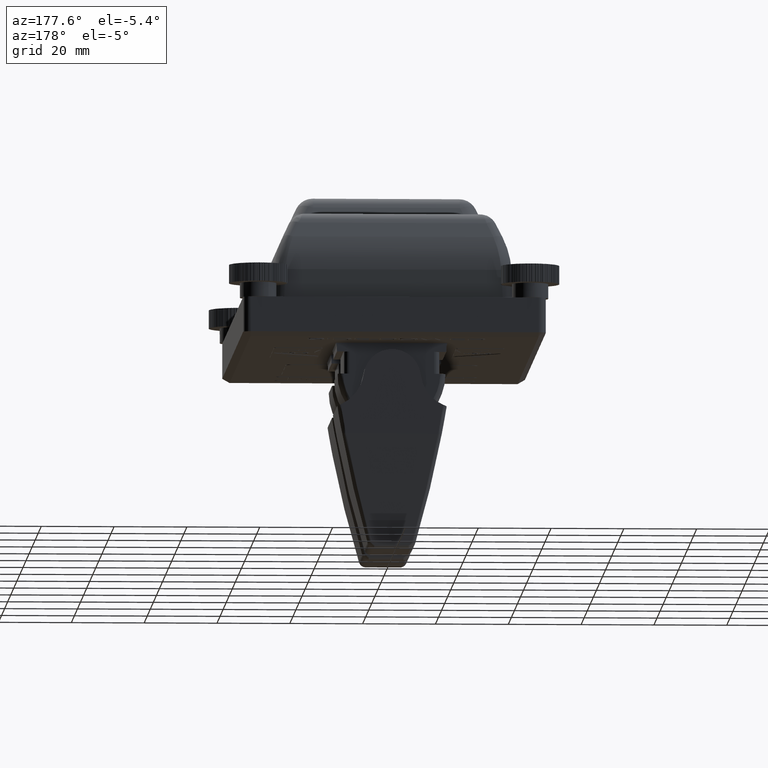
[diagram: clean part render]
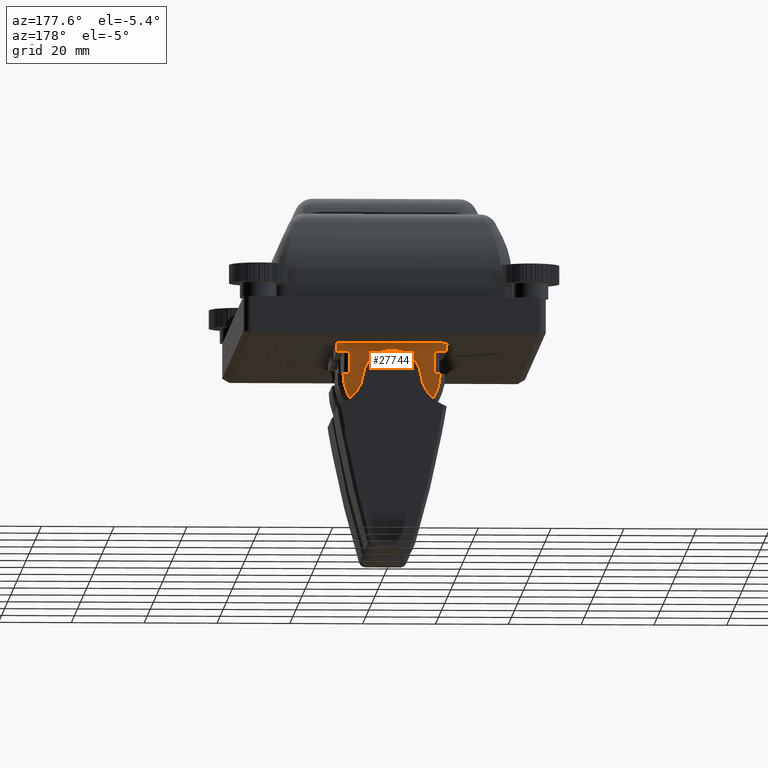
[diagram: same view with one face highlighted and labeled with its STEP entity id]
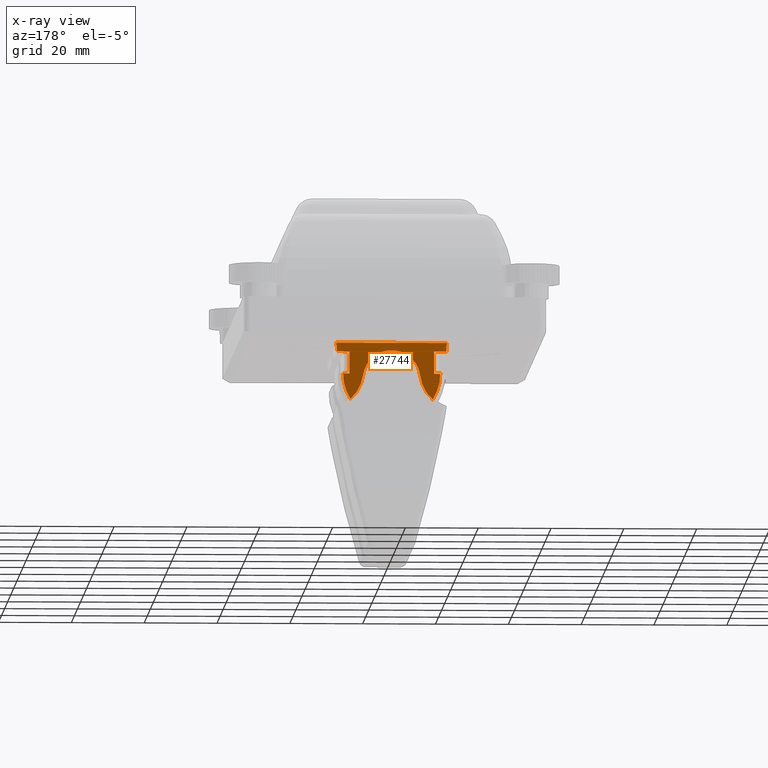
[diagram: x-ray of the same camera — body ghosted, the highlighted face saturated]
A machine part, auxiliary view. The second image highlights one B-rep face of the part: STEP entity #27744.
The next image is the same camera in x-ray: the body ghosted, the highlighted face saturated — about 0% of this face is hidden behind the body in this view.
In plain terms, the highlighted planar face has unit normal (0, 1, 0).
Its self-contained STEP definition (entity closure, byte-faithful):
#501=PLANE('',#30864);
#1827=FACE_OUTER_BOUND('',#3311,.T.);
#3311=EDGE_LOOP('',(#22582,#22583,#22584,#22585,#22586,#22587,#22588,#22589,
#22590,#22591,#22592,#22593,#22594,#22595,#22596,#22597,#22598,#22599));
#5414=CIRCLE('',#30842,10.7066157575281);
#5417=CIRCLE('',#30846,10.2461109155899);
#5422=CIRCLE('',#30853,15.9987806790244);
#5425=CIRCLE('',#30857,15.9987806790244);
#5428=CIRCLE('',#30865,11.12);
#5429=CIRCLE('',#30866,11.12);
#6571=LINE('',#48658,#8455);
#6572=LINE('',#48660,#8456);
#6573=LINE('',#48662,#8457);
#6574=LINE('',#48664,#8458);
#6575=LINE('',#48668,#8459);
#6576=LINE('',#48672,#8460);
#6577=LINE('',#48674,#8461);
#6578=LINE('',#48676,#8462);
#6579=LINE('',#48677,#8463);
#8455=VECTOR('',#37758,1.69999657854355);
#8456=VECTOR('',#37759,6.06700000082101);
#8457=VECTOR('',#37760,3.35886697851058);
#8458=VECTOR('',#37761,1.44535948055338);
#8459=VECTOR('',#37764,30.5);
#8460=VECTOR('',#37767,1.4453594812439);
#8461=VECTOR('',#37768,3.35886697849237);
#8462=VECTOR('',#37769,6.0670000013786);
#8463=VECTOR('',#37770,1.69999657833169);
#9445=B_SPLINE_CURVE_WITH_KNOTS('',3,(#48392,#48393,#48394,#48395,#48396,
#48397,#48398,#48399,#48400,#48401,#48402,#48403,#48404,#48405,#48406,#48407,
#48408,#48409,#48410,#48411,#48412,#48413,#48414,#48415,#48416),
 .UNSPECIFIED.,.F.,.F.,(4,3,3,3,3,3,3,3,4),(0.,0.240639957511937,0.533265643599107,
0.84755957119365,1.15405962661563,1.4605757091883,1.77487749943685,2.06718528705017,
2.3076292154807),.UNSPECIFIED.);
#9454=B_SPLINE_CURVE_WITH_KNOTS('',3,(#48611,#48612,#48613,#48614,#48615,
#48616,#48617,#48618),.UNSPECIFIED.,.F.,.F.,(4,2,2,4),(0.0155860871185358,
0.224154063168799,0.485486840933294,0.747024235592146),.UNSPECIFIED.);
#9457=B_SPLINE_CURVE_WITH_KNOTS('',3,(#48649,#48650,#48651,#48652,#48653,
#48654,#48655,#48656),.UNSPECIFIED.,.F.,.F.,(4,2,2,4),(-7.90478793533111E-14,
0.261138892777843,0.522547252253051,0.730794291010403),.UNSPECIFIED.);
#11672=VERTEX_POINT('',#48257);
#11673=VERTEX_POINT('',#48259);
#11679=VERTEX_POINT('',#48391);
#11683=VERTEX_POINT('',#48436);
#11698=VERTEX_POINT('',#48495);
#11701=VERTEX_POINT('',#48516);
#11704=VERTEX_POINT('',#48610);
#11706=VERTEX_POINT('',#48648);
#11707=VERTEX_POINT('',#48657);
#11708=VERTEX_POINT('',#48659);
#11709=VERTEX_POINT('',#48661);
#11710=VERTEX_POINT('',#48663);
#11711=VERTEX_POINT('',#48665);
#11712=VERTEX_POINT('',#48667);
#11713=VERTEX_POINT('',#48669);
#11714=VERTEX_POINT('',#48671);
#11715=VERTEX_POINT('',#48673);
#11716=VERTEX_POINT('',#48675);
#15417=EDGE_CURVE('',#11673,#11672,#5414,.T.);
#15425=EDGE_CURVE('',#11672,#11679,#9445,.T.);
#15431=EDGE_CURVE('',#11679,#11683,#5417,.T.);
#15447=EDGE_CURVE('',#11673,#11698,#5422,.T.);
#15452=EDGE_CURVE('',#11701,#11683,#5425,.T.);
#15459=EDGE_CURVE('',#11698,#11704,#9454,.T.);
#15462=EDGE_CURVE('',#11706,#11701,#9457,.T.);
#15463=EDGE_CURVE('',#11706,#11707,#6571,.T.);
#15464=EDGE_CURVE('',#11708,#11707,#6572,.T.);
#15465=EDGE_CURVE('',#11709,#11708,#6573,.T.);
#15466=EDGE_CURVE('',#11709,#11710,#6574,.T.);
#15467=EDGE_CURVE('',#11710,#11711,#5428,.T.);
#15468=EDGE_CURVE('',#11712,#11711,#6575,.T.);
#15469=EDGE_CURVE('',#11712,#11713,#5429,.T.);
#15470=EDGE_CURVE('',#11713,#11714,#6576,.T.);
#15471=EDGE_CURVE('',#11714,#11715,#6577,.T.);
#15472=EDGE_CURVE('',#11716,#11715,#6578,.T.);
#15473=EDGE_CURVE('',#11704,#11716,#6579,.T.);
#22582=ORIENTED_EDGE('',*,*,#15431,.T.);
#22583=ORIENTED_EDGE('',*,*,#15452,.F.);
#22584=ORIENTED_EDGE('',*,*,#15462,.F.);
#22585=ORIENTED_EDGE('',*,*,#15463,.T.);
#22586=ORIENTED_EDGE('',*,*,#15464,.F.);
#22587=ORIENTED_EDGE('',*,*,#15465,.F.);
#22588=ORIENTED_EDGE('',*,*,#15466,.T.);
#22589=ORIENTED_EDGE('',*,*,#15467,.T.);
#22590=ORIENTED_EDGE('',*,*,#15468,.F.);
#22591=ORIENTED_EDGE('',*,*,#15469,.T.);
#22592=ORIENTED_EDGE('',*,*,#15470,.T.);
#22593=ORIENTED_EDGE('',*,*,#15471,.T.);
#22594=ORIENTED_EDGE('',*,*,#15472,.F.);
#22595=ORIENTED_EDGE('',*,*,#15473,.F.);
#22596=ORIENTED_EDGE('',*,*,#15459,.F.);
#22597=ORIENTED_EDGE('',*,*,#15447,.F.);
#22598=ORIENTED_EDGE('',*,*,#15417,.T.);
#22599=ORIENTED_EDGE('',*,*,#15425,.T.);
#27744=ADVANCED_FACE('',(#1827),#501,.T.);
#30842=AXIS2_PLACEMENT_3D('',#48260,#37696,#37697);
#30846=AXIS2_PLACEMENT_3D('',#48449,#37709,#37710);
#30853=AXIS2_PLACEMENT_3D('',#48496,#37732,#37733);
#30857=AXIS2_PLACEMENT_3D('',#48531,#37740,#37741);
#30864=AXIS2_PLACEMENT_3D('',#48647,#37756,#37757);
#30865=AXIS2_PLACEMENT_3D('',#48666,#37762,#37763);
#30866=AXIS2_PLACEMENT_3D('',#48670,#37765,#37766);
#37696=DIRECTION('center_axis',(2.21594583206434E-17,1.,5.74183542660754E-16));
#37697=DIRECTION('ref_axis',(-0.319013248165814,5.25475811951348E-16,-0.947750255866331));
#37709=DIRECTION('center_axis',(2.21594583206434E-17,1.,5.74183542660754E-16));
#37710=DIRECTION('ref_axis',(0.993305521487619,2.63912406007084E-16,-0.115516842850767));
#37732=DIRECTION('center_axis',(-2.21594583206434E-17,-1.,-5.74183542660754E-16));
#37733=DIRECTION('ref_axis',(2.34477680435715E-13,5.74183542660749E-16,
-1.));
#37740=DIRECTION('center_axis',(-2.21594583206434E-17,-1.,-5.74183542660754E-16));
#37741=DIRECTION('ref_axis',(2.34477680435715E-13,5.74183542660749E-16,
-1.));
#37756=DIRECTION('center_axis',(2.21594583206434E-17,1.,5.74183542660754E-16));
#37757=DIRECTION('ref_axis',(0.,-7.105427357601E-16,1.));
#37758=DIRECTION('',(1.,2.1065881226015E-16,5.27683534907858E-13));
#37759=DIRECTION('',(-1.28093420064296E-31,5.74183542660754E-16,-1.));
#37760=DIRECTION('',(1.,-2.21594586352169E-17,5.47862300729315E-10));
#37761=DIRECTION('',(-0.0261769483069533,-5.56133978878287E-16,0.999657324975581));
#37762=DIRECTION('center_axis',(-2.1065881226044E-16,1.,5.50808322294633E-16));
#37763=DIRECTION('ref_axis',(-0.967951013435614,-6.55779175984534E-17,-0.25113907618881));
#37764=DIRECTION('',(-1.,2.21594583206434E-17,1.17650160675952E-32));
#37765=DIRECTION('center_axis',(-2.1065881226044E-16,1.,5.50808322294633E-16));
#37766=DIRECTION('ref_axis',(0.986252453582215,2.98781404636306E-16,-0.165245568179787));
#37767=DIRECTION('',(-0.0261769483068587,5.45105169200416E-16,-0.999657324975584));
#37768=DIRECTION('',(-1.,-2.10658812766953E-16,9.19581295783228E-10));
#37769=DIRECTION('',(1.64694366600073E-14,-5.74183542660754E-16,1.));
#37770=DIRECTION('',(-1.,2.21594583203464E-17,5.17234355998791E-13));
#48257=CARTESIAN_POINT('',(7.84711282165172,50.0199999114181,-57.8080019411414));
#48259=CARTESIAN_POINT('',(11.3227272479988,50.0199999114181,-64.2707160658981));
#48260=CARTESIAN_POINT('Origin',(18.4434519574775,50.0199999114181,-56.2752860842668));
#48391=CARTESIAN_POINT('',(-7.84711441781341,50.0199999114181,-57.808001941479));
#48392=CARTESIAN_POINT('Ctrl Pts',(7.84711282165172,50.0199999114181,-57.8080019411414));
#48393=CARTESIAN_POINT('Ctrl Pts',(7.75434337891018,50.0199999114181,-57.0102966248266));
#48394=CARTESIAN_POINT('Ctrl Pts',(7.54068967711459,50.0199999114181,-56.2327853073361));
#48395=CARTESIAN_POINT('Ctrl Pts',(7.21441608324814,50.0199999114181,-55.5015495757342));
#48396=CARTESIAN_POINT('Ctrl Pts',(6.81765722721918,50.0199999114181,-54.6123441425889));
#48397=CARTESIAN_POINT('Ctrl Pts',(6.26023347306767,50.0199999114181,-53.8048369999364));
#48398=CARTESIAN_POINT('Ctrl Pts',(5.57094090268735,50.0199999114181,-53.119280815539));
#48399=CARTESIAN_POINT('Ctrl Pts',(4.83060784408484,50.0199999114181,-52.3829608134843));
#48400=CARTESIAN_POINT('Ctrl Pts',(3.95042108575192,50.0199999114181,-51.7994969449958));
#48401=CARTESIAN_POINT('Ctrl Pts',(2.98030476935958,50.0199999114181,-51.4043169127304));
#48402=CARTESIAN_POINT('Ctrl Pts',(2.03424543243341,50.0199999114181,-51.0189365691837));
#48403=CARTESIAN_POINT('Ctrl Pts',(1.02174311491256,50.0199999114181,-50.8202693373237));
#48404=CARTESIAN_POINT('Ctrl Pts',(-0.00243855537176263,50.0199999114181,
-50.8205853761177));
#48405=CARTESIAN_POINT('Ctrl Pts',(-1.02667378099376,50.0199999114181,-50.8209014314377));
#48406=CARTESIAN_POINT('Ctrl Pts',(-2.0391023041176,50.0199999114181,-51.0202144896613));
#48407=CARTESIAN_POINT('Ctrl Pts',(-2.98495923184294,50.0199999114181,-51.4062139984309));
#48408=CARTESIAN_POINT('Ctrl Pts',(-3.95484154016382,50.0199999114181,-51.8020181455513));
#48409=CARTESIAN_POINT('Ctrl Pts',(-4.83467438068143,50.0199999114181,-52.3860571740822));
#48410=CARTESIAN_POINT('Ctrl Pts',(-5.57455026205625,50.0199999114181,-53.1228713351658));
#48411=CARTESIAN_POINT('Ctrl Pts',(-6.26265159874322,50.0199999114181,-53.8081252025974));
#48412=CARTESIAN_POINT('Ctrl Pts',(-6.81910063928746,50.0199999114181,-54.6149880532692));
#48413=CARTESIAN_POINT('Ctrl Pts',(-7.21521045919298,50.0199999114181,-55.5033269211523));
#48414=CARTESIAN_POINT('Ctrl Pts',(-7.5410389359696,50.0199999114181,-56.2340487705952));
#48415=CARTESIAN_POINT('Ctrl Pts',(-7.75442058108962,50.0199999114181,-57.010946745428));
#48416=CARTESIAN_POINT('Ctrl Pts',(-7.84711441781341,50.0199999114181,-57.808001941479));
#48436=CARTESIAN_POINT('',(-11.2671258449231,50.0199999114181,-64.3262790707812));
#48449=CARTESIAN_POINT('Origin',(-18.0246329640435,50.0199999114181,-56.6244035570112));
#48495=CARTESIAN_POINT('',(11.3859164827239,50.0199999114181,-64.2070596509166));
#48496=CARTESIAN_POINT('Origin',(-6.87156073261531E-5,50.0199999114181,
-52.9678281702288));
#48516=CARTESIAN_POINT('',(-11.3860453841227,50.0199999114181,-64.2070682922097));
#48531=CARTESIAN_POINT('Origin',(-6.87156073261531E-5,50.0199999114181,
-52.9678281702288));
#48610=CARTESIAN_POINT('',(13.34978168689,50.0199999114181,-57.2375850000003));
#48611=CARTESIAN_POINT('Ctrl Pts',(11.3859433966185,50.0199999114181,-64.2070761232408));
#48612=CARTESIAN_POINT('Ctrl Pts',(11.7490824704648,50.0199999114181,-63.613748389038));
#48613=CARTESIAN_POINT('Ctrl Pts',(12.0669840094123,50.0199999114181,-62.989718736862));
#48614=CARTESIAN_POINT('Ctrl Pts',(12.6674486304159,50.0199999114181,-61.5401340471165));
#48615=CARTESIAN_POINT('Ctrl Pts',(12.9222711546167,50.0199999114181,-60.70132669735));
#48616=CARTESIAN_POINT('Ctrl Pts',(13.2643465197886,50.0199999114181,-58.9818879893329));
#48617=CARTESIAN_POINT('Ctrl Pts',(13.3497662903704,50.0199999114181,-58.1093763285393));
#48618=CARTESIAN_POINT('Ctrl Pts',(13.3497816868916,50.0199999114181,-57.2375850000002));
#48647=CARTESIAN_POINT('Origin',(-1.73550506953912E-5,50.0199999114181,
-56.5751590035516));
#48648=CARTESIAN_POINT('',(-13.3497832832888,50.0199999114181,-57.2375850000005));
#48649=CARTESIAN_POINT('Ctrl Pts',(-13.3497832832888,50.0199999114181,-57.2375850000001));
#48650=CARTESIAN_POINT('Ctrl Pts',(-13.3497832832889,50.0199999114181,-58.1080479759265));
#48651=CARTESIAN_POINT('Ctrl Pts',(-13.2638431829334,50.0199999114181,-58.9848298267174));
#48652=CARTESIAN_POINT('Ctrl Pts',(-12.9224040442067,50.0199999114181,-60.70037812327));
#48653=CARTESIAN_POINT('Ctrl Pts',(-12.6686239237553,50.0199999114181,-61.5374865456289));
#48654=CARTESIAN_POINT('Ctrl Pts',(-12.0666926632712,50.0199999114181,-62.9906771118055));
#48655=CARTESIAN_POINT('Ctrl Pts',(-11.7487112866086,50.0199999114181,-63.6145555559578));
#48656=CARTESIAN_POINT('Ctrl Pts',(-11.3860724859341,50.0199999114181,-64.2070848790148));
#48657=CARTESIAN_POINT('',(-11.6497867047453,50.0199999114181,-57.2375849999992));
#48658=CARTESIAN_POINT('',(-14.8497832832888,50.0199999114181,-57.2375850000009));
#48659=CARTESIAN_POINT('',(-11.6497867047453,50.0199999114181,-51.1705849991782));
#48660=CARTESIAN_POINT('',(-11.6497867047453,50.0199999114181,-56.9063720017758));
#48661=CARTESIAN_POINT('',(-15.0086536832558,50.0199999114181,-51.1705850010184));
#48662=CARTESIAN_POINT('',(-6.57490203137846,50.0199999114181,-51.1705849963979));
#48663=CARTESIAN_POINT('',(-15.0464887836633,50.0199999114181,-49.7257208090603));
#48664=CARTESIAN_POINT('',(-15.0086536832558,50.0199999114181,-51.1705850010184));
#48665=CARTESIAN_POINT('',(-15.2500007980935,50.0199999114181,-48.770585));
#48666=CARTESIAN_POINT('Origin',(-4.28287351425923,50.0199999114181,-46.9330542818408));
#48667=CARTESIAN_POINT('',(15.2499992019065,50.0199999114181,-48.770585));
#48668=CARTESIAN_POINT('',(-9.07657207169433E-6,50.0199999114181,-48.770585));
#48669=CARTESIAN_POINT('',(15.0464871874762,50.0199999114181,-49.725720809061));
#48670=CARTESIAN_POINT('Origin',(4.28287191807231,50.0199999114181,-46.9330542818408));
#48671=CARTESIAN_POINT('',(15.0086520870508,50.0199999114181,-51.1705850017094));
#48672=CARTESIAN_POINT('',(15.0464871874762,50.0199999114181,-49.725720809061));
#48673=CARTESIAN_POINT('',(11.6497851085584,50.0199999114181,-51.1705849986207));
#48674=CARTESIAN_POINT('',(15.0086520870508,50.0199999114181,-51.1705850017094));
#48675=CARTESIAN_POINT('',(11.6497851085583,50.0199999114181,-57.2375849999993));
#48676=CARTESIAN_POINT('',(11.6497851085584,50.0199999114181,-53.8728720017759));
#48677=CARTESIAN_POINT('',(6.57488387675366,50.0199999114181,-57.2375849999966));